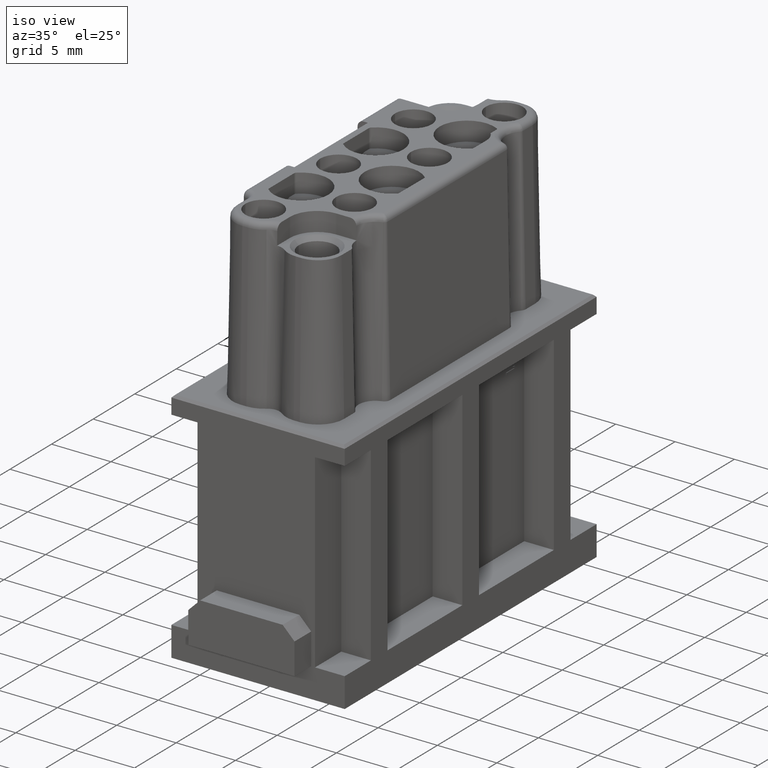
[diagram: clean part render]
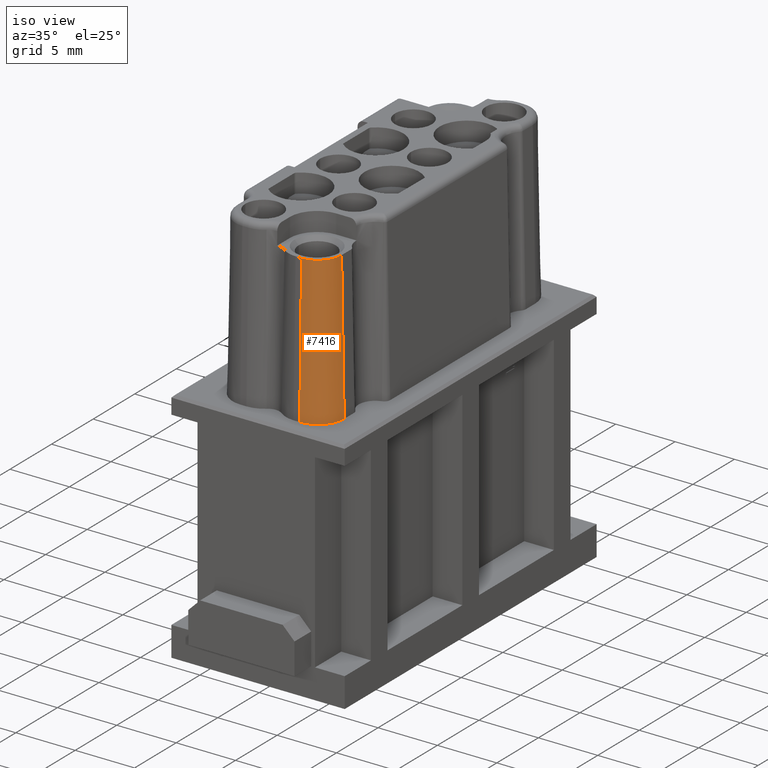
[diagram: same view with one face highlighted and labeled with its STEP entity id]
A machine part, iso view. The second image highlights one B-rep face of the part: STEP entity #7416.
In plain terms, the highlighted conical surface has half-angle 1 deg.
Its self-contained STEP definition (entity closure, byte-faithful):
#533=CARTESIAN_POINT('',(2.5E0,-1.15E1,3.24E1));
#534=DIRECTION('',(0.E0,0.E0,1.E0));
#535=DIRECTION('',(0.E0,-1.E0,0.E0));
#536=AXIS2_PLACEMENT_3D('',#533,#534,#535);
#594=DIRECTION('',(0.E0,-1.745240643728E-2,-9.998476951564E-1));
#595=VECTOR('',#594,1.240188886774E1);
#596=CARTESIAN_POINT('',(2.5E0,-1.348355719489E1,3.24E1));
#597=LINE('',#596,#595);
#598=DIRECTION('',(-1.745240643729E-2,0.E0,9.998476951564E-1));
#599=VECTOR('',#598,1.240188886774E1);
#600=CARTESIAN_POINT('',(4.7E0,-1.15E1,2.E1));
#601=LINE('',#600,#599);
#749=CARTESIAN_POINT('',(2.5E0,-1.15E1,2.E1));
#750=DIRECTION('',(0.E0,0.E0,-1.E0));
#751=DIRECTION('',(1.E0,6.782453386801E-14,0.E0));
#752=AXIS2_PLACEMENT_3D('',#749,#750,#751);
#4214=CARTESIAN_POINT('',(4.7E0,-1.15E1,2.E1));
#4215=VERTEX_POINT('',#4214);
#4216=CARTESIAN_POINT('',(2.5E0,-1.37E1,2.E1));
#4217=VERTEX_POINT('',#4216);
#4678=CARTESIAN_POINT('',(2.5E0,-1.348355719489E1,3.24E1));
#4679=CARTESIAN_POINT('',(4.483557194890E0,-1.15E1,3.24E1));
#4680=VERTEX_POINT('',#4678);
#4681=VERTEX_POINT('',#4679);
#7402=CARTESIAN_POINT('',(2.5E0,-1.15E1,2.62E1));
#7403=DIRECTION('',(0.E0,0.E0,-1.E0));
#7404=DIRECTION('',(-1.E0,0.E0,0.E0));
#7405=AXIS2_PLACEMENT_3D('',#7402,#7403,#7404);
#7406=CONICAL_SURFACE('',#7405,2.091778597445E0,1.E0);
#7408=ORIENTED_EDGE('',*,*,#7407,.F.);
#7409=ORIENTED_EDGE('',*,*,#7374,.T.);
#7411=ORIENTED_EDGE('',*,*,#7410,.F.);
#7413=ORIENTED_EDGE('',*,*,#7412,.T.);
#7414=EDGE_LOOP('',(#7408,#7409,#7411,#7413));
#7415=FACE_OUTER_BOUND('',#7414,.F.);
#7416=ADVANCED_FACE('',(#7415),#7406,.T.);
#537=CIRCLE('',#536,1.983557194890E0);
#753=CIRCLE('',#752,2.2E0);
#7374=EDGE_CURVE('',#4680,#4681,#537,.T.);
#7407=EDGE_CURVE('',#4680,#4217,#597,.T.);
#7410=EDGE_CURVE('',#4215,#4681,#601,.T.);
#7412=EDGE_CURVE('',#4215,#4217,#753,.T.);